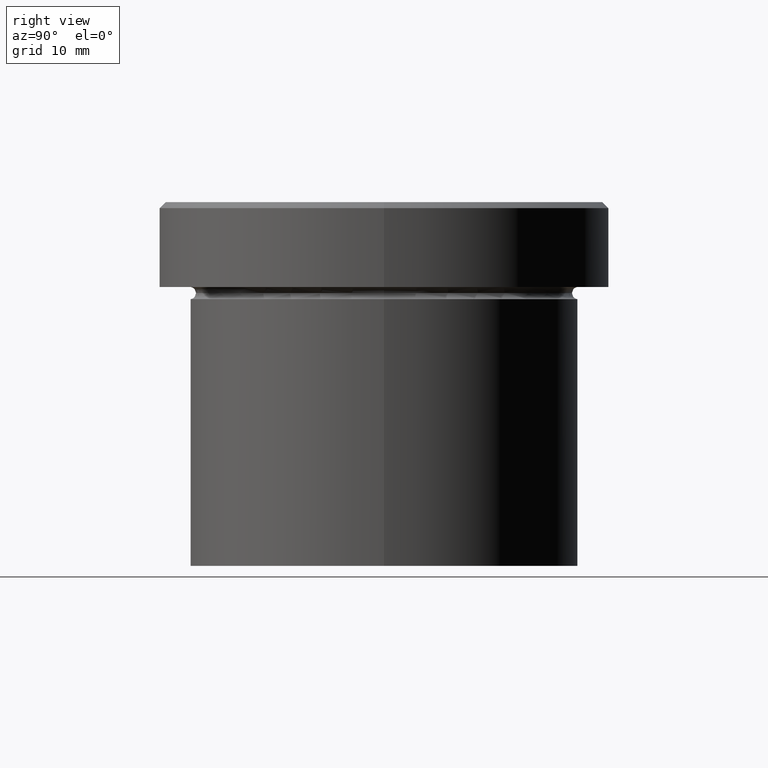
[diagram: clean part render]
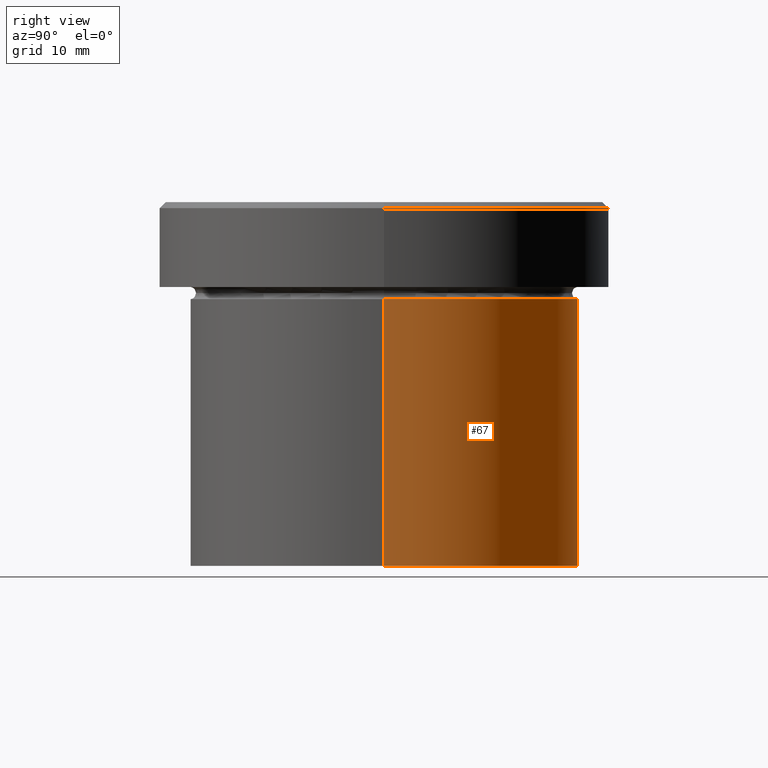
[diagram: same view with one face highlighted and labeled with its STEP entity id]
A machine part, right view. The second image highlights one B-rep face of the part: STEP entity #67.
In plain terms, the highlighted cylindrical surface (partial cylindrical patch) has radius 16 mm, axis along (-0, -0, 1).
Its self-contained STEP definition (entity closure, byte-faithful):
#1 = EDGE_CURVE ( 'NONE', #232, #349, #121, .T. ) ;
#7 = LINE ( 'NONE', #169, #285 ) ;
#43 = EDGE_LOOP ( 'NONE', ( #397, #400, #146, #48 ) ) ;
#48 = ORIENTED_EDGE ( 'NONE', *, *, #69, .F. ) ;
#59 = DIRECTION ( 'NONE',  ( -0.000000000000000000, -0.000000000000000000, 1.000000000000000000 ) ) ;
#67 = ADVANCED_FACE ( 'NONE', ( #213 ), #377, .T. ) ;
#69 = EDGE_CURVE ( 'NONE', #232, #156, #250, .T. ) ;
#78 = CIRCLE ( 'NONE', #112, 16.00000000000000000 ) ;
#112 = AXIS2_PLACEMENT_3D ( 'NONE', #260, #290, #321 ) ;
#121 = CIRCLE ( 'NONE', #227, 16.00000000000000000 ) ;
#140 = CARTESIAN_POINT ( 'NONE',  ( -16.00000000000000000, 1.959434878635765131E-15, -30.00000000000000000 ) ) ;
#144 = CARTESIAN_POINT ( 'NONE',  ( 16.00000000000000000, 0.000000000000000000, -30.00000000000000000 ) ) ;
#146 = ORIENTED_EDGE ( 'NONE', *, *, #319, .F. ) ;
#152 = CARTESIAN_POINT ( 'NONE',  ( 0.000000000000000000, 0.000000000000000000, -30.00000000000000000 ) ) ;
#156 = VERTEX_POINT ( 'NONE', #163 ) ;
#163 = CARTESIAN_POINT ( 'NONE',  ( 16.00000000000000000, 0.000000000000000000, -8.000000000000000000 ) ) ;
#169 = CARTESIAN_POINT ( 'NONE',  ( -16.00000000000000000, 1.959434878635765131E-15, 0.000000000000000000 ) ) ;
#175 = DIRECTION ( 'NONE',  ( 1.000000000000000000, 0.000000000000000000, 0.000000000000000000 ) ) ;
#201 = EDGE_CURVE ( 'NONE', #349, #270, #7, .T. ) ;
#213 = FACE_OUTER_BOUND ( 'NONE', #43, .T. ) ;
#218 = DIRECTION ( 'NONE',  ( -0.000000000000000000, -0.000000000000000000, 1.000000000000000000 ) ) ;
#220 = CARTESIAN_POINT ( 'NONE',  ( 16.00000000000000000, 0.000000000000000000, 0.000000000000000000 ) ) ;
#227 = AXIS2_PLACEMENT_3D ( 'NONE', #152, #357, #175 ) ;
#232 = VERTEX_POINT ( 'NONE', #144 ) ;
#250 = LINE ( 'NONE', #220, #389 ) ;
#260 = CARTESIAN_POINT ( 'NONE',  ( 0.000000000000000000, 0.000000000000000000, -8.000000000000000000 ) ) ;
#270 = VERTEX_POINT ( 'NONE', #327 ) ;
#275 = CARTESIAN_POINT ( 'NONE',  ( 0.000000000000000000, 0.000000000000000000, 0.000000000000000000 ) ) ;
#285 = VECTOR ( 'NONE', #293, 1000.000000000000000 ) ;
#290 = DIRECTION ( 'NONE',  ( -0.000000000000000000, -0.000000000000000000, 1.000000000000000000 ) ) ;
#293 = DIRECTION ( 'NONE',  ( -0.000000000000000000, -0.000000000000000000, 1.000000000000000000 ) ) ;
#319 = EDGE_CURVE ( 'NONE', #156, #270, #78, .T. ) ;
#321 = DIRECTION ( 'NONE',  ( 1.000000000000000000, 0.000000000000000000, 0.000000000000000000 ) ) ;
#327 = CARTESIAN_POINT ( 'NONE',  ( -16.00000000000000000, 1.959434878635765131E-15, -8.000000000000000000 ) ) ;
#338 = DIRECTION ( 'NONE',  ( 1.000000000000000000, 0.000000000000000000, 0.000000000000000000 ) ) ;
#349 = VERTEX_POINT ( 'NONE', #140 ) ;
#357 = DIRECTION ( 'NONE',  ( -0.000000000000000000, -0.000000000000000000, 1.000000000000000000 ) ) ;
#372 = AXIS2_PLACEMENT_3D ( 'NONE', #275, #218, #338 ) ;
#377 = CYLINDRICAL_SURFACE ( 'NONE', #372, 16.00000000000000000 ) ;
#389 = VECTOR ( 'NONE', #59, 1000.000000000000000 ) ;
#397 = ORIENTED_EDGE ( 'NONE', *, *, #1, .T. ) ;
#400 = ORIENTED_EDGE ( 'NONE', *, *, #201, .T. ) ;